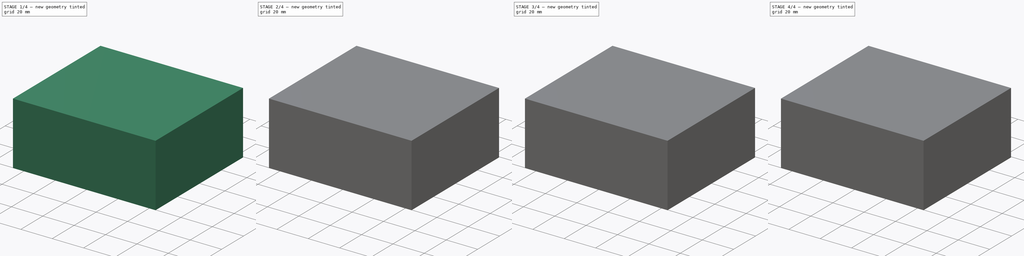
[diagram: build sequence overview — one tinted view per stage of 4, left to right]
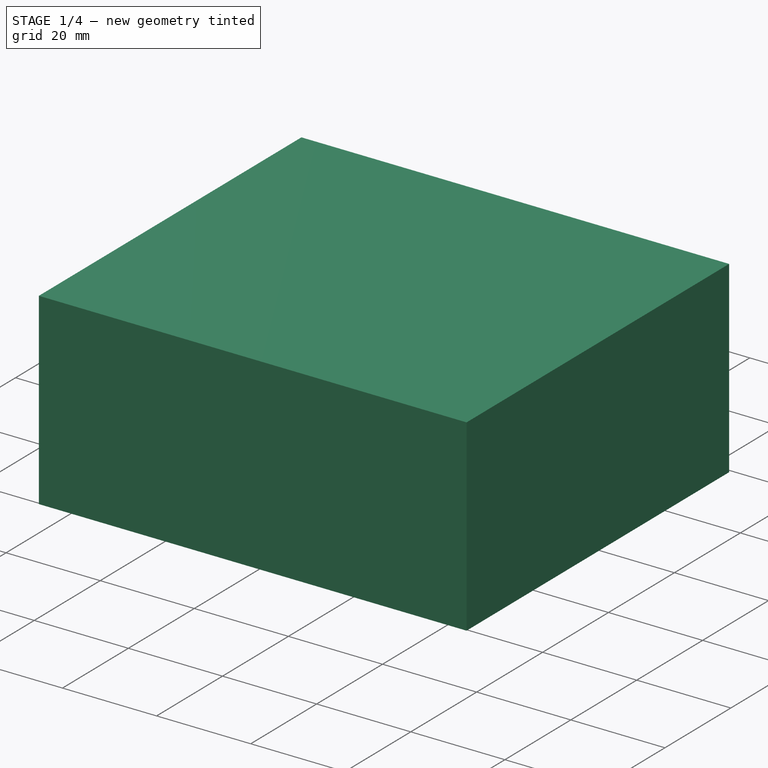
[diagram: stage 1 of 4 — iso view after this stage's code; geometry added in this stage tinted green]
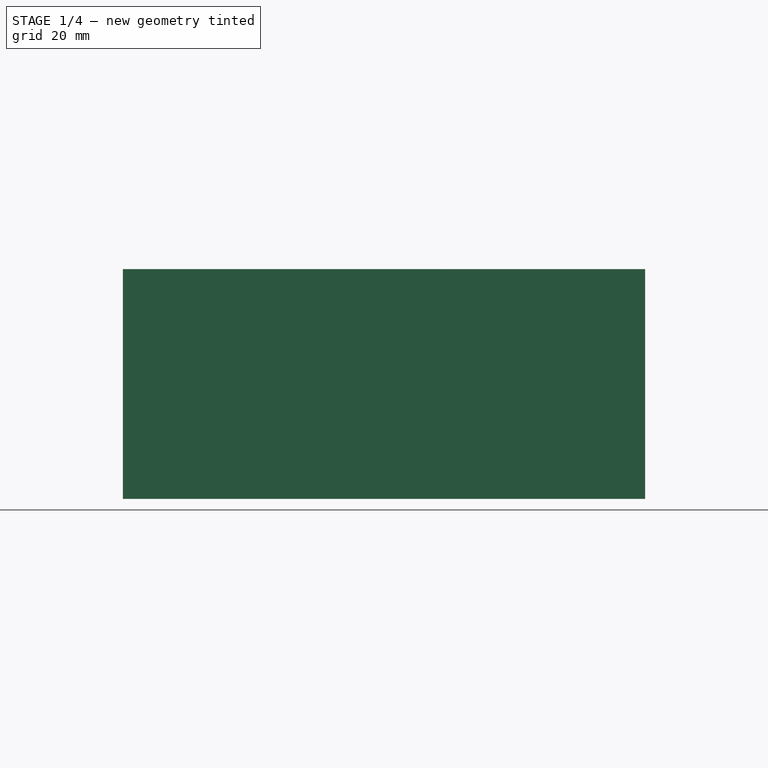
[diagram: stage 1 of 4 — front view after this stage's code; geometry added in this stage tinted green]
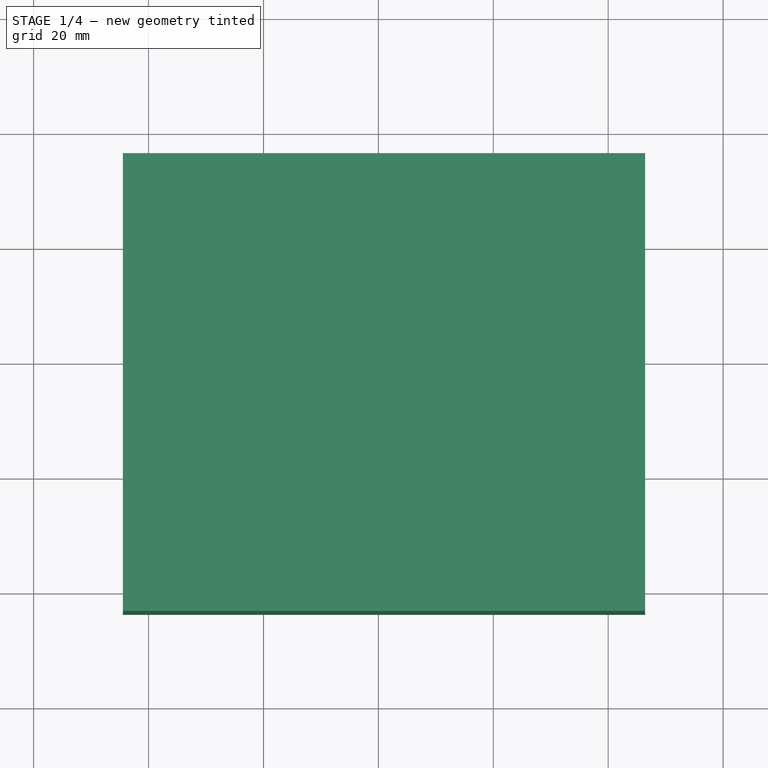
[diagram: stage 1 of 4 — top view after this stage's code; geometry added in this stage tinted green]
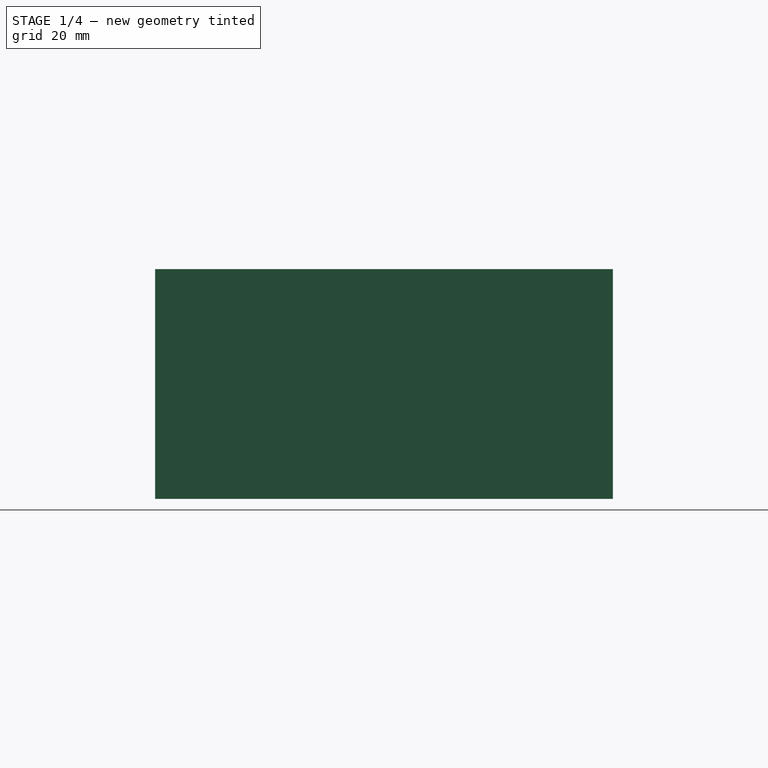
[diagram: stage 1 of 4 — right view after this stage's code; geometry added in this stage tinted green]
FCSTD DOCUMENT  (FreeCAD 0.18R16131 (Git))
Label: Wilkinson_Divider_1
License: All rights reserved
LicenseURL: http://en.wikipedia.org/wiki/All_rights_reserved
objects: Sketcher::SketchObject×11, Part::Extrusion×6, PartDesign::Body×3, PartDesign::Pad×2, PartDesign::FeatureBase×1
note: 25 computed .brp shape members not serialized (recipe doc carries the construction recipe); baked Part::Feature solids carry a one-line shape summary decoded from their .brp

FEATURE [PartDesign::Body] Body003  label="simBox Body"
  BaseFeature = -> Extrude003
  Group = -> [BaseFeature,Sketch009]
  Origin = -> Origin003
  Tip = -> BaseFeature
FEATURE [PartDesign::Body] Body  label="_export_copper_wilkinson"
  Group = -> [Sketch005,Pad]
  Origin = -> Origin
  Tip = -> Pad
FEATURE [Sketcher::SketchObject] Sketch011
  Placement = pos=(0,0,-20) rot=(0,0,1;0rad)
  sketch-geometry (4):
    g0: LineSegment StartX=-44.461 StartY=36.0134 StartZ=0 EndX=46.4173 EndY=36.0134 EndZ=0
    g1: LineSegment StartX=46.4173 StartY=36.0134 StartZ=0 EndX=46.4173 EndY=-43.6607 EndZ=0
    g2: LineSegment StartX=46.4173 StartY=-43.6607 StartZ=0 EndX=-44.461 EndY=-43.6607 EndZ=0
    g3: LineSegment StartX=-44.461 StartY=-43.6607 StartZ=0 EndX=-44.461 EndY=36.0134 EndZ=0
  constraints (8):
    c: Coincident(g0,g1)
    c: Coincident(g1,g2)
    c: Coincident(g2,g3)
    c: Coincident(g3,g0)
    c: Horizontal(g0)
    c: Horizontal(g2)
    c: Vertical(g1)
    c: Vertical(g3)
FEATURE [Part::Extrusion] Extrude005  label="_export_simBox"
  Base = -> Sketch011
  Dir = (0,0,1)
  DirMode = 2
  FaceMakerClass = Part::FaceMakerBullseye
  LengthFwd = 40
  LengthRev = 0
  Solid = true
  Symmetric = false
FEATURE [Sketcher::SketchObject] Sketch012  label="_export_openEMS_fieldDump"
  Placement = pos=(0,0,3) rot=(0,0,1;0rad)
  sketch-geometry (4):
    g0: LineSegment StartX=-21.6119 StartY=20.2717 StartZ=0 EndX=21.7226 EndY=20.2717 EndZ=0
    g1: LineSegment StartX=21.7226 StartY=20.2717 StartZ=0 EndX=21.7226 EndY=-19.1526 EndZ=0
    g2: LineSegment StartX=21.7226 StartY=-19.1526 StartZ=0 EndX=-21.6119 EndY=-19.1526 EndZ=0
    g3: LineSegment StartX=-21.6119 StartY=-19.1526 StartZ=0 EndX=-21.6119 EndY=20.2717 EndZ=0
  constraints (8):
    c: Coincident(g0,g1)
    c: Coincident(g1,g2)
    c: Coincident(g2,g3)
    c: Coincident(g3,g0)
    c: Horizontal(g0)
    c: Horizontal(g2)
    c: Vertical(g1)
    c: Vertical(g3)
FEATURE [Sketcher::SketchObject] Sketch003  label="gnd"
  MapMode = 5
  Placement = pos=(0,0,-1.5) rot=(0,0,1;0rad)
  sketch-geometry (4):
    g0: LineSegment StartX=22.5612 StartY=-20.1709 StartZ=0 EndX=-22.3707 EndY=-20.1709 EndZ=0
    g1: LineSegment StartX=-22.3707 StartY=-20.1709 StartZ=0 EndX=-22.3707 EndY=20.9197 EndZ=0
    g2: LineSegment StartX=-22.3707 StartY=20.9197 StartZ=0 EndX=22.5612 EndY=20.9197 EndZ=0
    g3: LineSegment StartX=22.5612 StartY=20.9197 StartZ=0 EndX=22.5612 EndY=-20.1709 EndZ=0
  constraints (8):
    c: Coincident(g0,g1)
    c: Coincident(g1,g2)
    c: Coincident(g2,g3)
    c: Coincident(g3,g0)
    c: Horizontal(g0)
    c: Horizontal(g2)
    c: Vertical(g1)
    c: Vertical(g3)
FEATURE [Part::Extrusion] Extrude006  label="_export_openEMS_gndPad"
  Base = -> Sketch003
  Dir = (0,0,1)
  DirMode = 2
  FaceMakerClass = Part::FaceMakerBullseye
  LengthFwd = 0
  LengthRev = 0.035
  Solid = true
  Symmetric = false
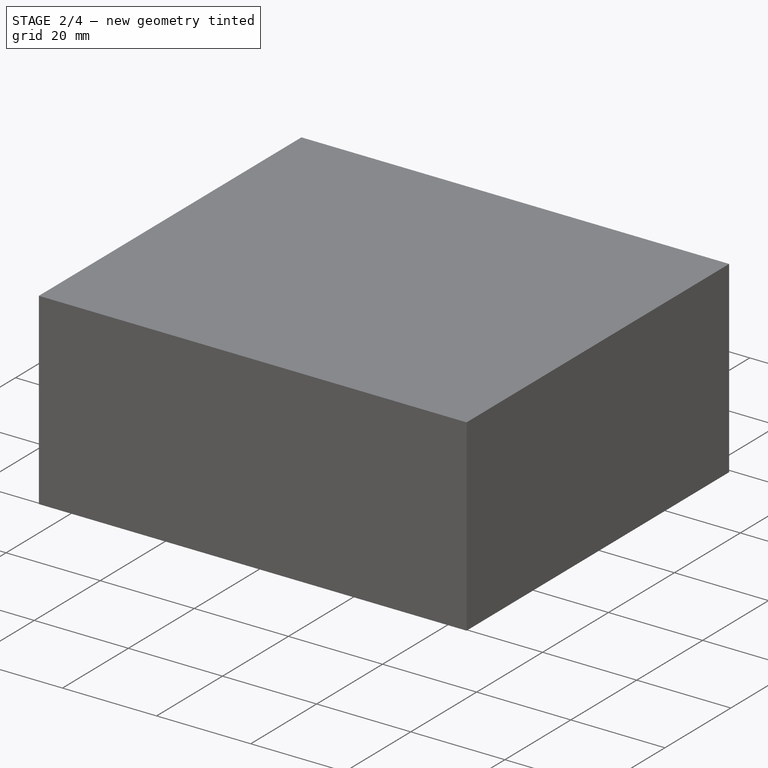
[diagram: stage 2 of 4 — iso view after this stage's code; geometry added in this stage tinted green]
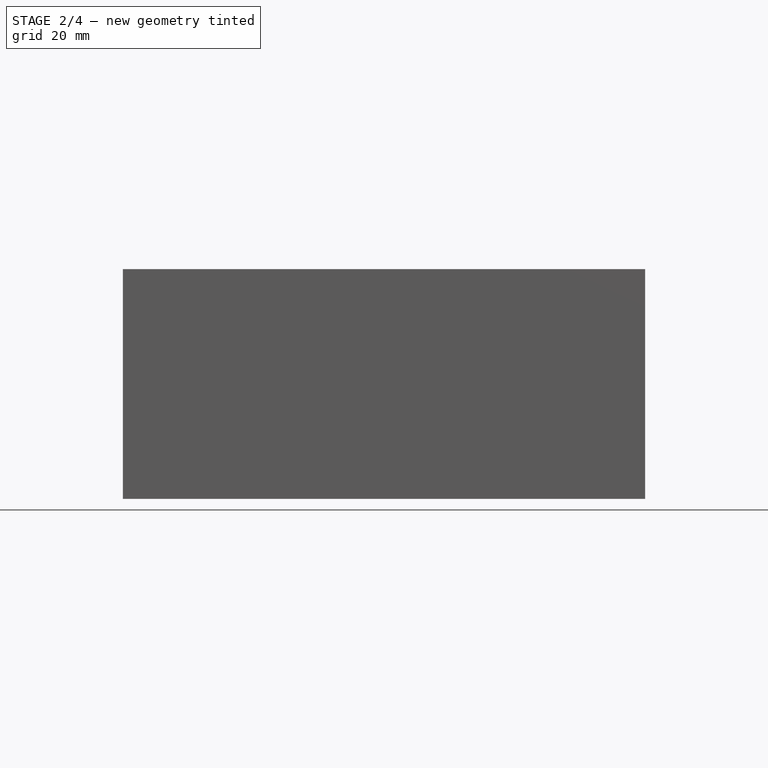
[diagram: stage 2 of 4 — front view after this stage's code; geometry added in this stage tinted green]
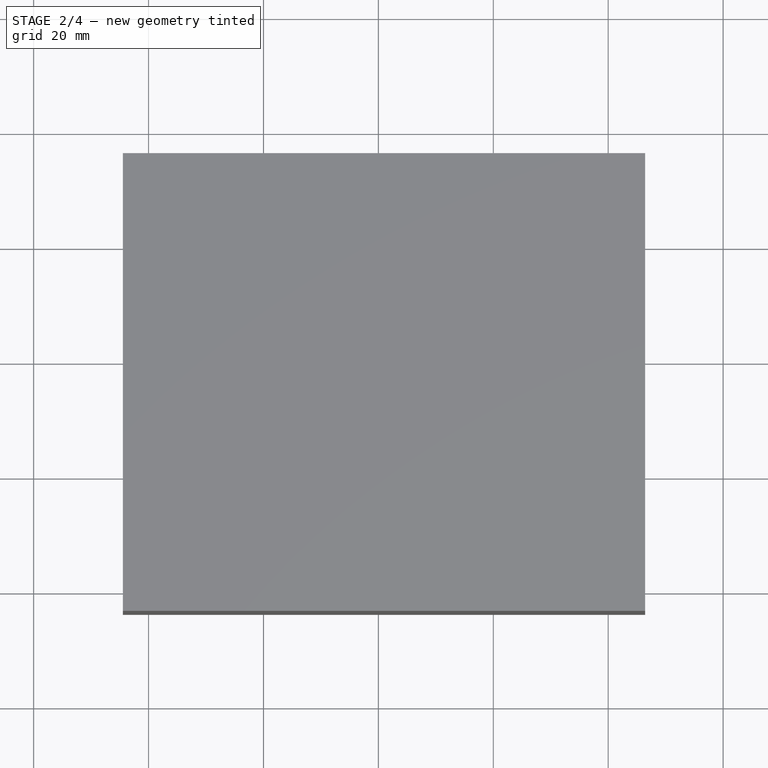
[diagram: stage 2 of 4 — top view after this stage's code; geometry added in this stage tinted green]
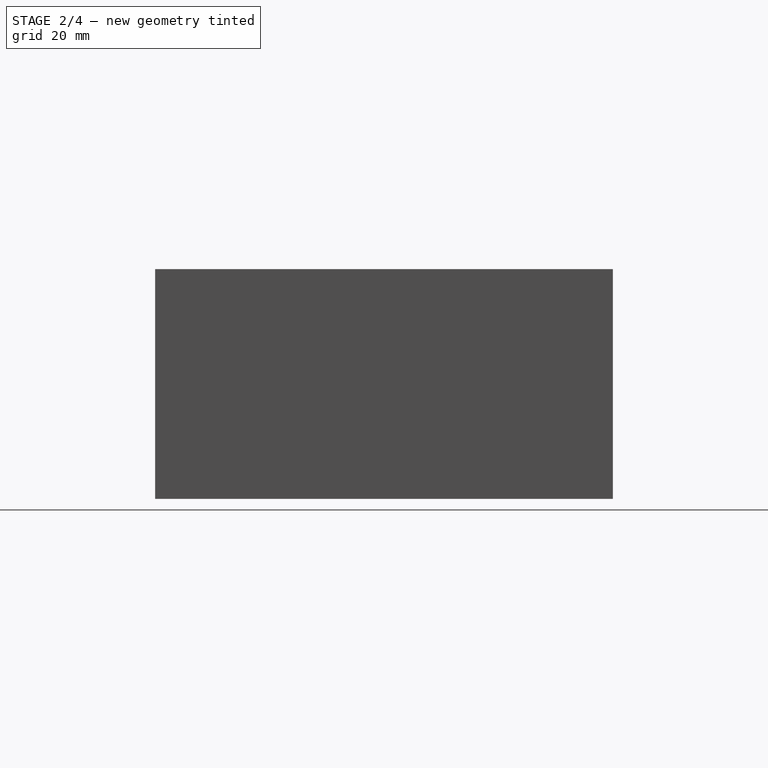
[diagram: stage 2 of 4 — right view after this stage's code; geometry added in this stage tinted green]
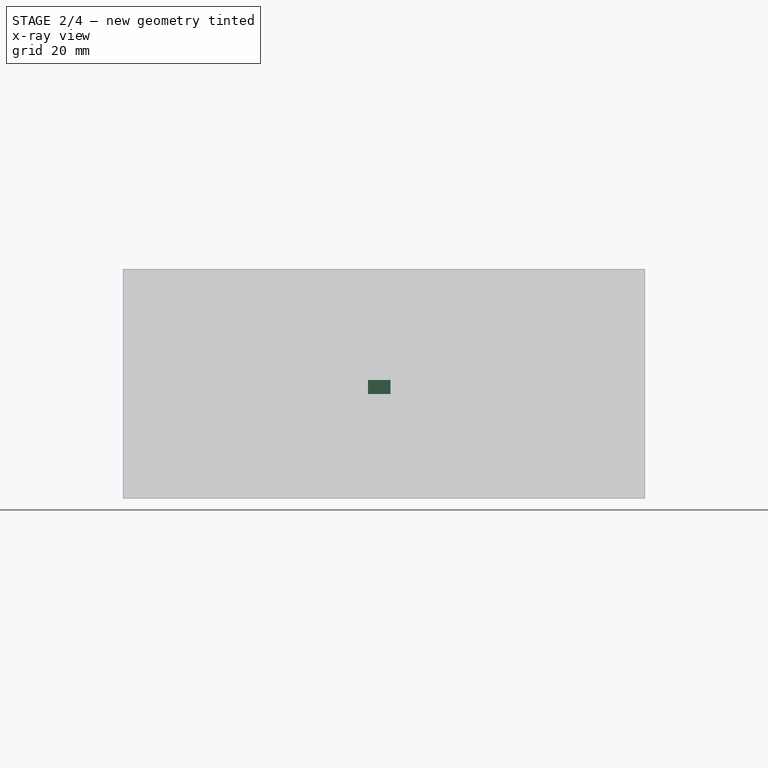
[diagram: stage 2 of 4 — x-ray composite at the front view; earlier geometry ghosted, this stage's added geometry solid]
FEATURE [PartDesign::Body] Body002  label="_export_substrate_cuprextit"
  Group = -> [Sketch001,Pad002]
  Origin = -> Origin002
  Tip = -> Pad002
FEATURE [Sketcher::SketchObject] Sketch009
  AttachmentOffset = pos=(0,0,-20) rot=(0,0,1;0rad)
  MapMode = 5
  Placement = pos=(0,0,-20) rot=(0,0,1;0rad)
  Support = -> [XY_Plane003]
  sketch-geometry (8):
    g0: LineSegment StartX=-69.4422 StartY=58.5006 StartZ=0 EndX=-23.8556 EndY=58.5006 EndZ=0
    g1: LineSegment StartX=-23.8556 StartY=58.5006 StartZ=0 EndX=-23.8556 EndY=-68.9477 EndZ=0
    g2: LineSegment StartX=-23.8556 StartY=-68.9477 StartZ=0 EndX=-69.4422 EndY=-68.9477 EndZ=0
    g3: LineSegment StartX=-69.4422 StartY=-68.9477 StartZ=0 EndX=-69.4422 EndY=58.5006 EndZ=0
    g4: LineSegment StartX=23.6532 StartY=59.1331 StartZ=0 EndX=67.0472 EndY=59.1331 EndZ=0
    g5: LineSegment StartX=67.0472 StartY=59.1331 StartZ=0 EndX=67.0472 EndY=-68.7367 EndZ=0
    g6: LineSegment StartX=67.0472 StartY=-68.7367 StartZ=0 EndX=23.6532 EndY=-68.7367 EndZ=0
    g7: LineSegment StartX=23.6532 StartY=-68.7367 StartZ=0 EndX=23.6532 EndY=59.1331 EndZ=0
  constraints (16):
    c: Coincident(g0,g1)
    c: Coincident(g1,g2)
    c: Coincident(g2,g3)
    c: Coincident(g3,g0)
    c: Horizontal(g0)
    c: Horizontal(g2)
    c: Vertical(g1)
    c: Vertical(g3)
    c: Coincident(g4,g5)
    c: Coincident(g5,g6)
    c: Coincident(g6,g7)
    c: Coincident(g7,g4)
    c: Horizontal(g4)
    c: Horizontal(g6)
    c: Vertical(g5)
    c: Vertical(g7)
FEATURE [Sketcher::SketchObject] Sketch005  label="wilkinson001"
  MapMode = 5
  Support = -> [XY_Plane]
  sketch-geometry (30):
    g0: GeomPoint X=0 Y=19.6584 Z=0
    g1: GeomPoint X=0 Y=-15.7308 Z=0
    g2: LineSegment StartX=0.837893 StartY=-17.956 StartZ=0 EndX=20.8379 EndY=-17.956 EndZ=0
    g3: LineSegment StartX=-0.837893 StartY=-17.956 StartZ=0 EndX=-20.8379 EndY=-17.956 EndZ=0
    g4: LineSegment StartX=0.837893 StartY=-7.956 StartZ=0 EndX=0.837893 EndY=-17.956 EndZ=0
    g5: LineSegment StartX=-0.837893 StartY=-7.956 StartZ=0 EndX=-0.837893 EndY=-17.956 EndZ=0
    g6: LineSegment StartX=4.15789 StartY=-14.636 StartZ=0 EndX=4.15789 EndY=-8.87423 EndZ=0
    g7: LineSegment StartX=-4.15789 StartY=-14.636 StartZ=0 EndX=-4.15789 EndY=-8.87423 EndZ=0
    g8: GeomPoint X=4.15789 Y=-7.87286 Z=0
    g9: GeomPoint X=4.15789 Y=-14.636 Z=0
    g10: GeomPoint X=-4.15789 Y=-14.636 Z=0
    g11: LineSegment StartX=4.15789 StartY=-14.636 StartZ=0 EndX=20.8379 EndY=-14.636 EndZ=0
    g12: LineSegment StartX=20.8379 StartY=-14.636 StartZ=0 EndX=20.8379 EndY=-17.956 EndZ=0
    g13: LineSegment StartX=-4.15789 StartY=-14.636 StartZ=0 EndX=-20.8379 EndY=-14.636 EndZ=0
    g14: LineSegment StartX=-20.8379 StartY=-14.636 StartZ=0 EndX=-20.8379 EndY=-17.956 EndZ=0
    g15: GeomPoint X=-1.66 Y=9.65838 Z=0
    g16: GeomPoint X=-0.837893 Y=-7.95683 Z=0
    g17: GeomPoint X=0.837893 Y=-8.87423 Z=0
    g18: GeomPoint X=4.15789 Y=-8.87423 Z=0
    g19: GeomPoint X=-4.15789 Y=-8.87423 Z=0
    g20: ArcOfCircle CenterX=0 CenterY=0 CenterZ=0 NormalX=0 NormalY=0 NormalZ=1 AngleXU=0 Radius=8 StartAngle=4.81732 EndAngle=7.645
    g21: ArcOfCircle CenterX=0 CenterY=0 CenterZ=0 NormalX=0 NormalY=0 NormalZ=1 AngleXU=0 Radius=9.8 StartAngle=5.15055 EndAngle=7.68377
    g22: ArcOfCircle CenterX=0 CenterY=0 CenterZ=0 NormalX=0 NormalY=0 NormalZ=1 AngleXU=0 Radius=8 StartAngle=1.77987 EndAngle=4.60746
    g23: ArcOfCircle CenterX=0 CenterY=0 CenterZ=0 NormalX=0 NormalY=0 NormalZ=1 AngleXU=0 Radius=9.8 StartAngle=1.741 EndAngle=4.27423
    g24: GeomPoint X=-3.3942 Y=-7.24427 Z=0
    g25: GeomPoint X=3.3942 Y=-7.24427 Z=0
    g26: LineSegment StartX=-1.66 StartY=19.6584 StartZ=0 EndX=1.66 EndY=19.6584 EndZ=0
    g27: LineSegment StartX=-1.66 StartY=19.6584 StartZ=0 EndX=-1.66 EndY=9.65838 EndZ=0
    g28: LineSegment StartX=1.66 StartY=19.6584 StartZ=0 EndX=1.66 EndY=9.65838 EndZ=0
    g29: LineSegment StartX=-1.66046 StartY=7.82578 StartZ=0 EndX=1.65969 EndY=7.82595 EndZ=0
  constraints (66):
    c: PointOnObject(g0,g-2)
    c: PointOnObject(g1,g-2)
    c: Horizontal(g2)
    c: Horizontal(g3)
    c: Perpendicular(g3,g5)
    c: Perpendicular(g2,g4)
    c: Parallel(g6,g4)
    c: Parallel(g7,g5)
    c: PointOnObject(g8,g6)
    c: PointOnObject(g9,g6)
    c: PointOnObject(g10,g7)
    c: Coincident(g11,g9)
    c: Coincident(g11,g12)
    c: Coincident(g12,g2)
    c: Perpendicular(g6,g11)
    c: Perpendicular(g2,g12)
    c: Coincident(g13,g10)
    c: Coincident(g13,g14)
    c: Coincident(g14,g3)
    c: Perpendicular(g14,g3)
    c: Perpendicular(g14,g13)
    c: PointOnObject(g19,g7)
    c: PointOnObject(g18,g6)
    c: PointOnObject(g16,g5)
    c: PointOnObject(g17,g4)
    c: PointOnObject(g6,g11)
    c: PointOnObject(g7,g13)
    c: Coincident(g2,g4)
    c: Coincident(g3,g5)
    c: Coincident(g20,g-1)
    c: Coincident(g20,g4)
    c: Coincident(g21,g20)
    c: Coincident(g21,g18)
    c: Coincident(g22,g20)
    c: Coincident(g22,g5)
    c: Coincident(g23,g20)
    c: Coincident(g23,g15)
    c: Coincident(g23,g19)
    c: PointOnObject(g7,g23)
    c: PointOnObject(g6,g21)
    c: Distance(g12) = 3.32
    c: Distance(g14) = 3.32
    c: PointOnObject(g24,g22)
    c: Distance(g24,g7) = 1.8
    c: PointOnObject(g25,g20)
    c: Distance(g25,g6) = 1.8
    c: PointOnObject(g0,g26)
    c: Symmetric(g26,g26,g-2)
    c: Distance(g26) = 3.32
    c: Radius(g20) = 8
    c: Coincident(g27,g26)
    c: Coincident(g28,g26)
    c: Parallel(g28,g-2)
    c: Parallel(g27,g-2)
    c: PointOnObject(g15,g27)
    c: Coincident(g29,g22)
    c: Coincident(g29,g20)
    c: PointOnObject(g27,g23)
    c: Coincident(g28,g21)
    c: Distance(g5) = 10
    c: Distance(g4) = 10
    c: Symmetric(g4,g5,g-2)
    c: DistanceY(g11,g20) = 14.636
    c: Distance(g2) = 20
    c: Distance(g3) = 20
    c: Distance(g27) = 10
FEATURE [PartDesign::Pad] Pad  label="openEMS_Wilkinson"
  Length = 0.035
  Length2 = 100
  Profile = -> Sketch005
  Type = 0
FEATURE [Sketcher::SketchObject] Sketch008  label="inPort sketch"
  MapMode = 5
  Placement = pos=(0,19.6584,0) rot=(0,0.707107,0.707107;3.14159rad)
  Support = -> [Pad]
  sketch-geometry (4):
    g0: LineSegment StartX=-2.11714 StartY=0.694302 StartZ=0 EndX=1.82683 EndY=0.694302 EndZ=0
    g1: LineSegment StartX=1.82683 StartY=0.694302 StartZ=0 EndX=1.82683 EndY=-1.79311 EndZ=0
    g2: LineSegment StartX=1.82683 StartY=-1.79311 StartZ=0 EndX=-2.11714 EndY=-1.79311 EndZ=0
    g3: LineSegment StartX=-2.11714 StartY=-1.79311 StartZ=0 EndX=-2.11714 EndY=0.694302 EndZ=0
  constraints (8):
    c: Coincident(g0,g1)
    c: Coincident(g1,g2)
    c: Coincident(g2,g3)
    c: Coincident(g3,g0)
    c: Horizontal(g0)
    c: Horizontal(g2)
    c: Vertical(g1)
    c: Vertical(g3)
FEATURE [Part::Extrusion] Extrude003  label="openEMS_inPort"
  Base = -> Sketch008
  Dir = (0,1,-2e-16)
  DirMode = 2
  FaceMakerClass = Part::FaceMakerBullseye
  LengthFwd = 0.5
  LengthRev = 0
  Reversed = true
  Solid = true
  Symmetric = false
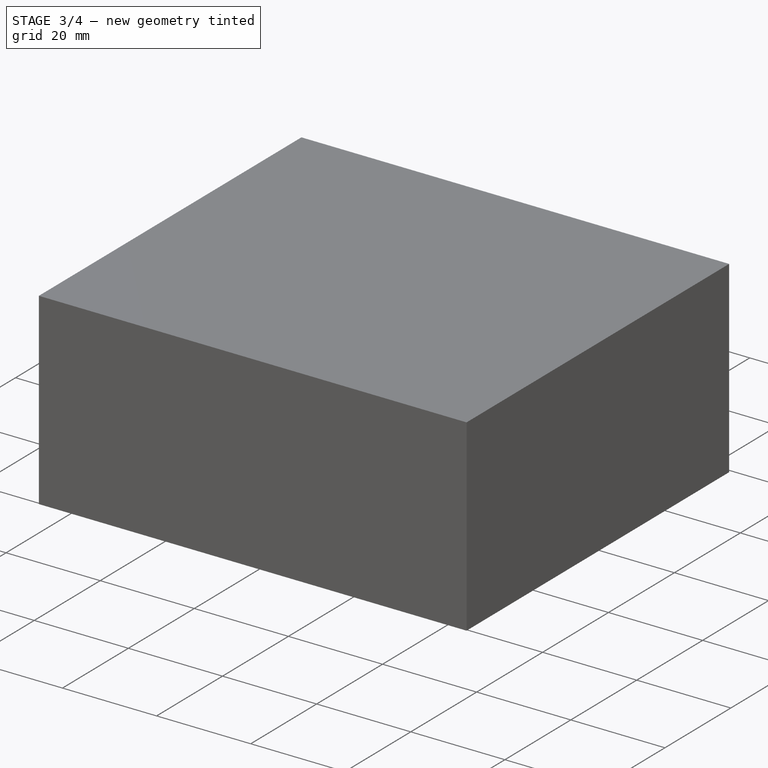
[diagram: stage 3 of 4 — iso view after this stage's code; geometry added in this stage tinted green]
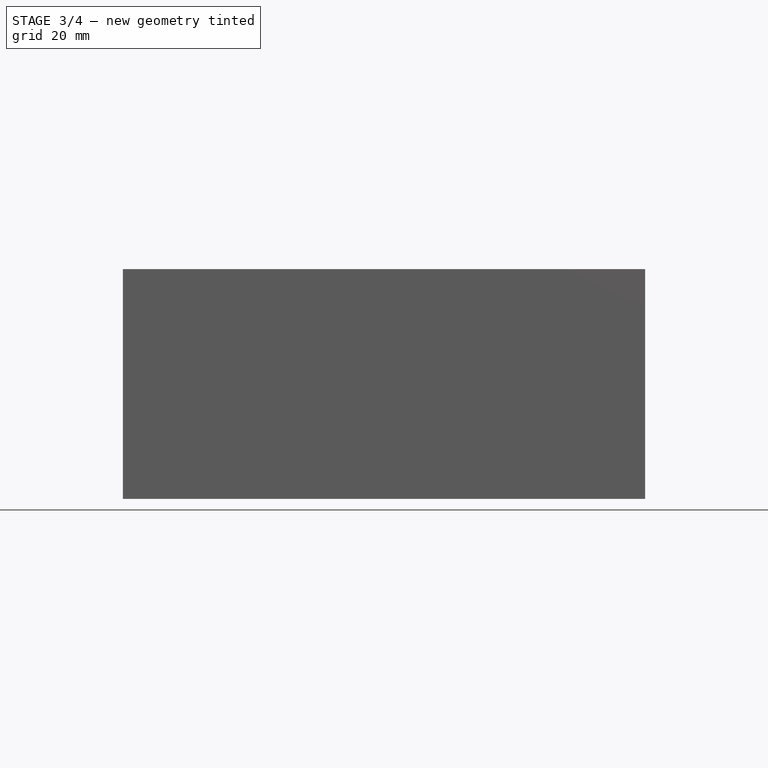
[diagram: stage 3 of 4 — front view after this stage's code; geometry added in this stage tinted green]
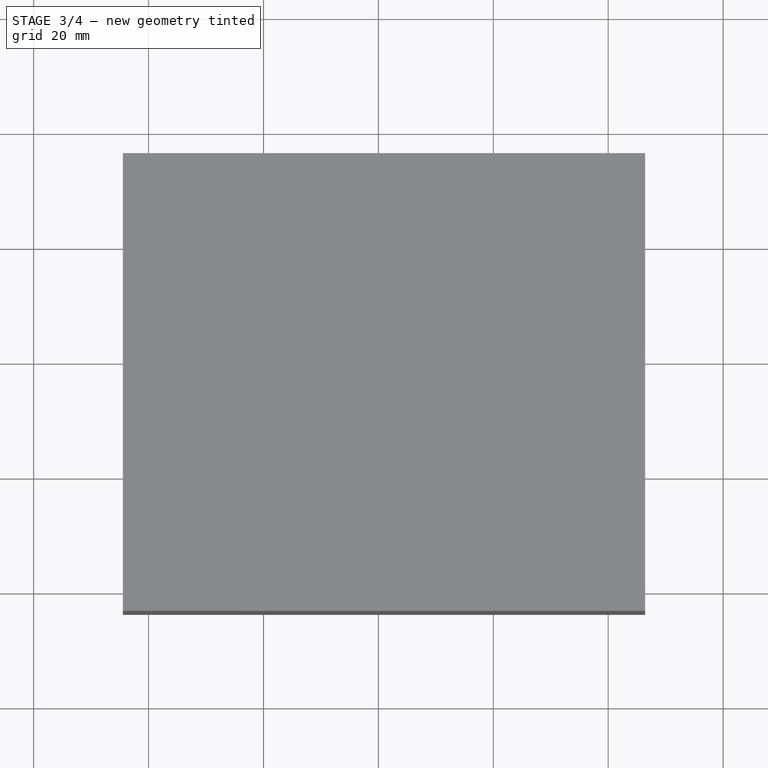
[diagram: stage 3 of 4 — top view after this stage's code; geometry added in this stage tinted green]
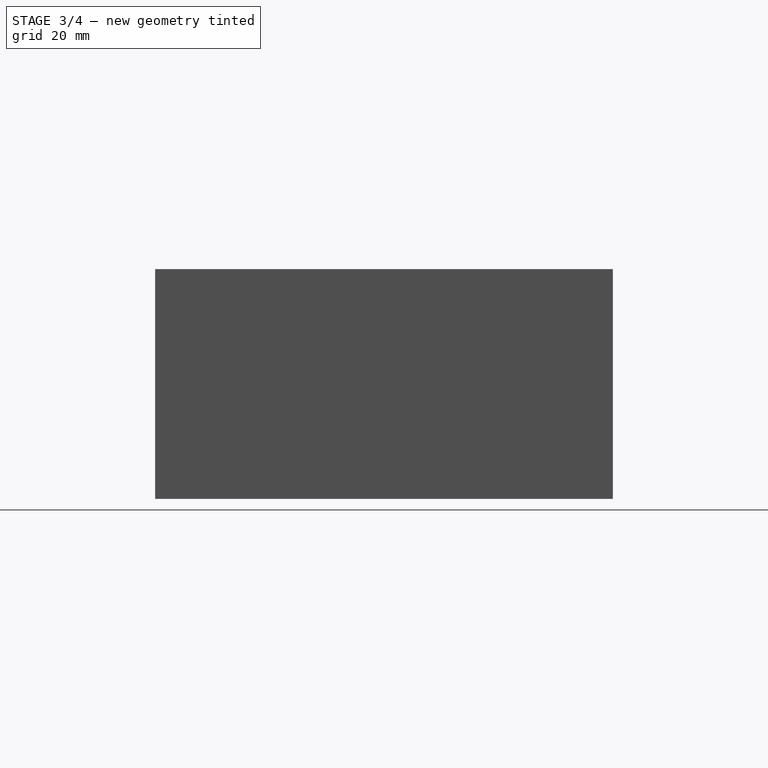
[diagram: stage 3 of 4 — right view after this stage's code; geometry added in this stage tinted green]
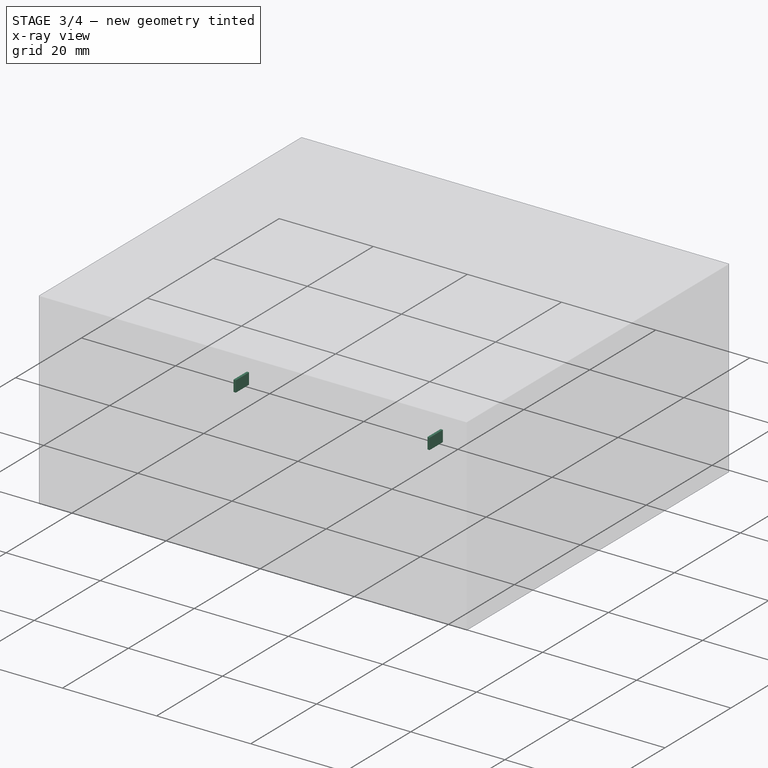
[diagram: stage 3 of 4 — x-ray composite at the iso view; earlier geometry ghosted, this stage's added geometry solid]
FEATURE [Sketcher::SketchObject] Sketch006  label="port2 sketch"
  MapMode = 5
  Placement = pos=(20.8379,0,0) rot=(0.57735,0.57735,0.57735;2.0944rad)
  Support = -> [Pad]
  sketch-geometry (4):
    g0: LineSegment StartX=-18.362 StartY=0.537745 StartZ=0 EndX=-14.3064 EndY=0.537745 EndZ=0
    g1: LineSegment StartX=-14.3064 StartY=0.537745 StartZ=0 EndX=-14.3064 EndY=-1.86314 EndZ=0
    g2: LineSegment StartX=-14.3064 StartY=-1.86314 StartZ=0 EndX=-18.362 EndY=-1.86314 EndZ=0
    g3: LineSegment StartX=-18.362 StartY=-1.86314 StartZ=0 EndX=-18.362 EndY=0.537745 EndZ=0
  constraints (8):
    c: Coincident(g0,g1)
    c: Coincident(g1,g2)
    c: Coincident(g2,g3)
    c: Coincident(g3,g0)
    c: Horizontal(g0)
    c: Horizontal(g2)
    c: Vertical(g1)
    c: Vertical(g3)
FEATURE [Part::Extrusion] Extrude001  label="openEMS_port2"
  Base = -> Sketch006
  Dir = (1,0,0)
  DirMode = 2
  FaceMakerClass = Part::FaceMakerBullseye
  LengthFwd = 0.5
  LengthRev = 0
  Reversed = true
  Solid = true
  Symmetric = false
FEATURE [Sketcher::SketchObject] Sketch007  label="port1 sketch"
  MapMode = 5
  Placement = pos=(-20.8379,0,0) rot=(0.57735,-0.57735,-0.57735;2.0944rad)
  Support = -> [Pad]
  sketch-geometry (4):
    g0: LineSegment StartX=14.2929 StartY=0.553675 StartZ=0 EndX=18.3598 EndY=0.553675 EndZ=0
    g1: LineSegment StartX=18.3598 StartY=0.553675 StartZ=0 EndX=18.3598 EndY=-1.84587 EndZ=0
    g2: LineSegment StartX=18.3598 StartY=-1.84587 StartZ=0 EndX=14.2929 EndY=-1.84587 EndZ=0
    g3: LineSegment StartX=14.2929 StartY=-1.84587 StartZ=0 EndX=14.2929 EndY=0.553675 EndZ=0
  constraints (8):
    c: Coincident(g0,g1)
    c: Coincident(g1,g2)
    c: Coincident(g2,g3)
    c: Coincident(g3,g0)
    c: Horizontal(g0)
    c: Horizontal(g2)
    c: Vertical(g1)
    c: Vertical(g3)
FEATURE [Part::Extrusion] Extrude002  label="openEMS_port1"
  Base = -> Sketch007
  Dir = (-1,0,0)
  DirMode = 2
  FaceMakerClass = Part::FaceMakerBullseye
  LengthFwd = 0.5
  LengthRev = 0
  Reversed = true
  Solid = true
  Symmetric = false
FEATURE [PartDesign::FeatureBase] BaseFeature
  BaseFeature = -> Extrude003
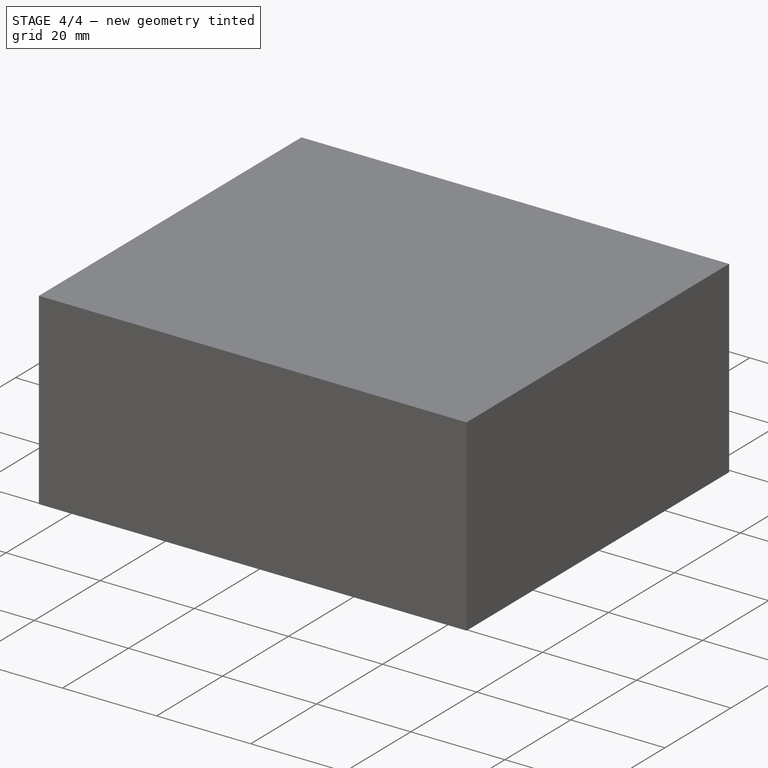
[diagram: stage 4 of 4 — iso view after this stage's code; geometry added in this stage tinted green]
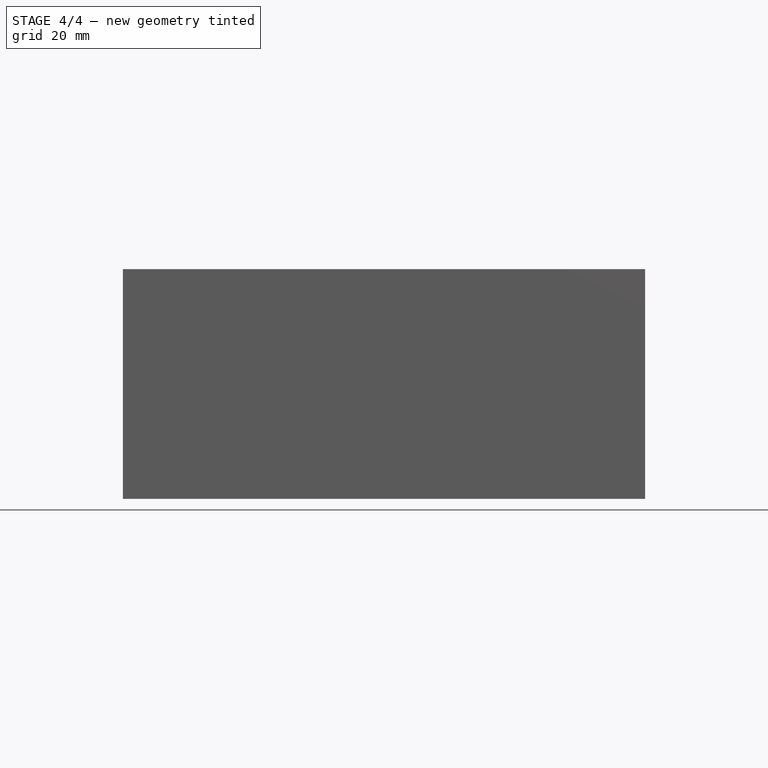
[diagram: stage 4 of 4 — front view after this stage's code; geometry added in this stage tinted green]
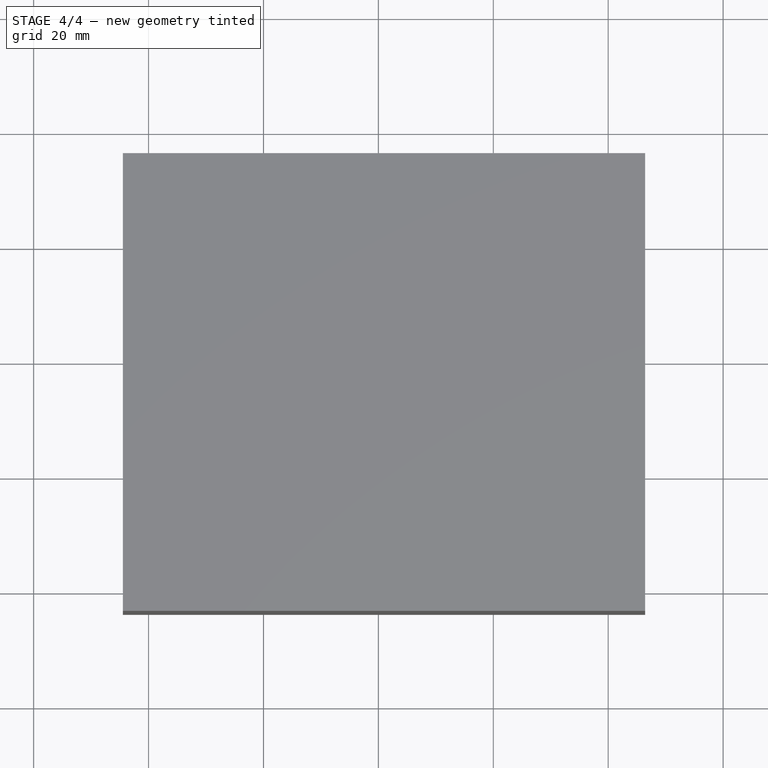
[diagram: stage 4 of 4 — top view after this stage's code; geometry added in this stage tinted green]
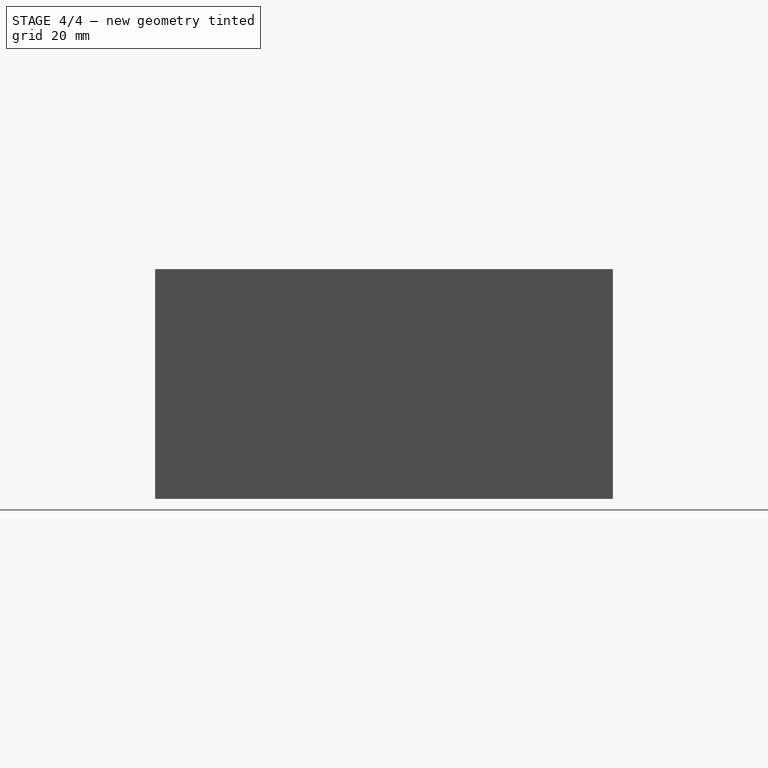
[diagram: stage 4 of 4 — right view after this stage's code; geometry added in this stage tinted green]
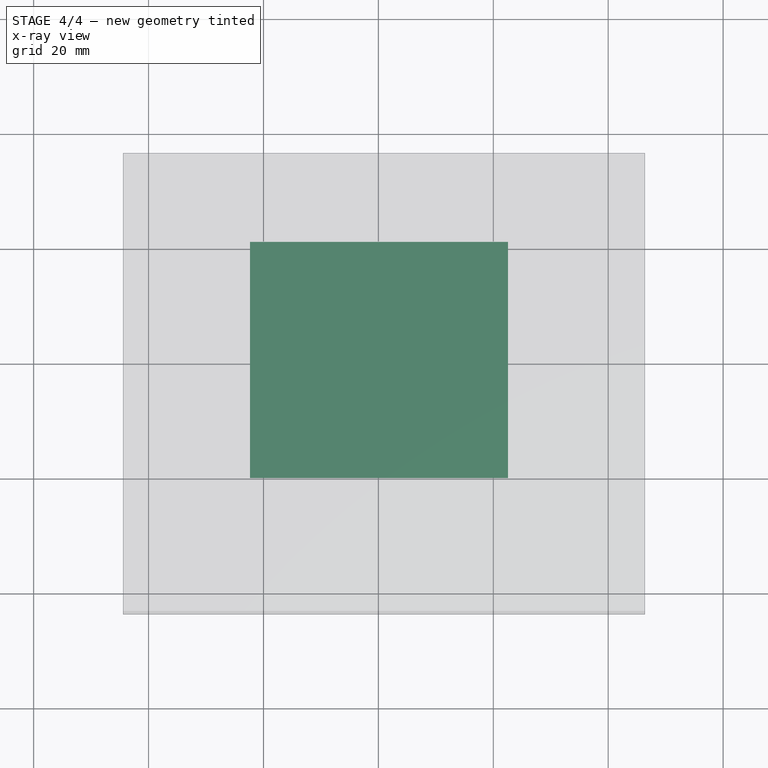
[diagram: stage 4 of 4 — x-ray composite at the top view; earlier geometry ghosted, this stage's added geometry solid]
FEATURE [Sketcher::SketchObject] Sketch001  label="substrate"
  MapMode = 5
  Support = -> [XY_Plane002]
  sketch-geometry (4):
    g0: LineSegment StartX=22.5612 StartY=-20.1709 StartZ=0 EndX=-22.3707 EndY=-20.1709 EndZ=0
    g1: LineSegment StartX=-22.3707 StartY=-20.1709 StartZ=0 EndX=-22.3707 EndY=20.9197 EndZ=0
    g2: LineSegment StartX=-22.3707 StartY=20.9197 StartZ=0 EndX=22.5612 EndY=20.9197 EndZ=0
    g3: LineSegment StartX=22.5612 StartY=20.9197 StartZ=0 EndX=22.5612 EndY=-20.1709 EndZ=0
  constraints (8):
    c: Coincident(g0,g1)
    c: Coincident(g1,g2)
    c: Coincident(g2,g3)
    c: Coincident(g3,g0)
    c: Horizontal(g0)
    c: Horizontal(g2)
    c: Vertical(g1)
    c: Vertical(g3)
FEATURE [Sketcher::SketchObject] Sketch004  label="wilkinson"
  MapMode = 5
  sketch-geometry (35):
    g0: GeomPoint X=0 Y=19.6584 Z=0
    g1: GeomPoint X=0 Y=-15.7308 Z=0
    g2: LineSegment StartX=0.837893 StartY=-17.956 StartZ=0 EndX=20.8379 EndY=-17.956 EndZ=0
    g3: LineSegment StartX=-0.837893 StartY=-17.956 StartZ=0 EndX=-20.8379 EndY=-17.956 EndZ=0
    g4: LineSegment StartX=0.837893 StartY=-7.956 StartZ=0 EndX=0.837893 EndY=-17.956 EndZ=0
    g5: LineSegment StartX=-0.837893 StartY=-7.956 StartZ=0 EndX=-0.837893 EndY=-17.956 EndZ=0
    g6: LineSegment StartX=4.15789 StartY=-14.636 StartZ=0 EndX=4.15789 EndY=-8.87423 EndZ=0
    g7: LineSegment StartX=-4.15789 StartY=-14.636 StartZ=0 EndX=-4.15789 EndY=-8.87423 EndZ=0
    g8: GeomPoint X=4.15789 Y=-7.87286 Z=0
    g9: GeomPoint X=4.15789 Y=-14.636 Z=0
    g10: GeomPoint X=-4.15789 Y=-14.636 Z=0
    g11: LineSegment StartX=4.15789 StartY=-14.636 StartZ=0 EndX=20.8379 EndY=-14.636 EndZ=0
    g12: LineSegment StartX=20.8379 StartY=-14.636 StartZ=0 EndX=20.8379 EndY=-17.956 EndZ=0
    g13: LineSegment StartX=-4.15789 StartY=-14.636 StartZ=0 EndX=-20.8379 EndY=-14.636 EndZ=0
    g14: LineSegment StartX=-20.8379 StartY=-14.636 StartZ=0 EndX=-20.8379 EndY=-17.956 EndZ=0
    g15: GeomPoint X=-1.66 Y=9.65838 Z=0
    g16: GeomPoint X=-0.837893 Y=-7.95683 Z=0
    g17: GeomPoint X=0.837893 Y=-8.87423 Z=0
    g18: GeomPoint X=4.15789 Y=-8.87423 Z=0
    g19: GeomPoint X=-4.15789 Y=-8.87423 Z=0
    g20: ArcOfCircle CenterX=0 CenterY=0 CenterZ=0 NormalX=0 NormalY=0 NormalZ=1 AngleXU=0 Radius=8 StartAngle=4.81732 EndAngle=7.645
    g21: ArcOfCircle CenterX=0 CenterY=0 CenterZ=0 NormalX=0 NormalY=0 NormalZ=1 AngleXU=0 Radius=9.8 StartAngle=5.15055 EndAngle=7.68377
    g22: ArcOfCircle CenterX=0 CenterY=0 CenterZ=0 NormalX=0 NormalY=0 NormalZ=1 AngleXU=0 Radius=8 StartAngle=1.77987 EndAngle=4.60746
    g23: ArcOfCircle CenterX=0 CenterY=0 CenterZ=0 NormalX=0 NormalY=0 NormalZ=1 AngleXU=0 Radius=9.8 StartAngle=1.741 EndAngle=4.27423
    g24: LineSegment StartX=-3.3942 StartY=-7.24427 StartZ=0 EndX=-4.15789 EndY=-8.87423 EndZ=0
    g25: GeomPoint X=-3.3942 Y=-7.24427 Z=0
    g26: LineSegment StartX=3.3942 StartY=-7.24427 StartZ=0 EndX=4.15789 EndY=-8.87423 EndZ=0
    g27: GeomPoint X=3.3942 Y=-7.24427 Z=0
    g28: LineSegment StartX=-1.66 StartY=19.6584 StartZ=0 EndX=1.66 EndY=19.6584 EndZ=0
    g29: LineSegment StartX=-4.15789 StartY=-8.87423 StartZ=0 EndX=-0.837893 EndY=-8.87423 EndZ=0
    g30: LineSegment StartX=0.837893 StartY=-8.87423 StartZ=0 EndX=4.15789 EndY=-8.87423 EndZ=0
    g31: LineSegment StartX=-1.66 StartY=19.6584 StartZ=0 EndX=-1.66 EndY=9.65838 EndZ=0
    g32: LineSegment StartX=1.66 StartY=19.6584 StartZ=0 EndX=1.66 EndY=9.65838 EndZ=0
    g33: LineSegment StartX=-1.66046 StartY=7.82578 StartZ=0 EndX=1.65969 EndY=7.82595 EndZ=0
    g34: LineSegment StartX=-0.837893 StartY=-7.956 StartZ=0 EndX=0.837893 EndY=-7.956 EndZ=0
  constraints (84):
    c: PointOnObject(g0,g-2)
    c: PointOnObject(g1,g-2)
    c: Horizontal(g2)
    c: Horizontal(g3)
    c: Perpendicular(g3,g5)
    c: Perpendicular(g2,g4)
    c: Parallel(g6,g4)
    c: Parallel(g7,g5)
    c: PointOnObject(g8,g6)
    c: PointOnObject(g9,g6)
    c: PointOnObject(g10,g7)
    c: Coincident(g11,g9)
    c: Coincident(g11,g12)
    c: Coincident(g12,g2)
    c: Perpendicular(g6,g11)
    c: Perpendicular(g2,g12)
    c: Coincident(g13,g10)
    c: Coincident(g13,g14)
    c: Coincident(g14,g3)
    c: Perpendicular(g14,g3)
    c: Perpendicular(g14,g13)
    c: PointOnObject(g19,g7)
    c: PointOnObject(g18,g6)
    c: PointOnObject(g16,g5)
    c: PointOnObject(g17,g4)
    c: PointOnObject(g6,g11)
    c: PointOnObject(g7,g13)
    c: Coincident(g2,g4)
    c: Coincident(g3,g5)
    c: Coincident(g20,g-1)
    c: Coincident(g20,g4)
    c: Coincident(g21,g20)
    c: Coincident(g21,g18)
    c: Coincident(g22,g20)
    c: Coincident(g22,g5)
    c: Coincident(g23,g20)
    c: Coincident(g23,g15)
    c: Coincident(g23,g19)
    c: PointOnObject(g7,g23)
    c: PointOnObject(g6,g21)
    c: Distance(g12) = 3.32
    c: Distance(g14) = 3.32
    c: Coincident(g24,g7)
    c: PointOnObject(g25,g22)
    c: PointOnObject(g25,g24)
    c: Distance(g25,g7) = 1.8
    c: Coincident(g26,g6)
    c: PointOnObject(g27,g20)
    c: PointOnObject(g27,g26)
    c: Distance(g27,g6) = 1.8
    c: PointOnObject(g24,g22)
    c: PointOnObject(g26,g20)
    c: PointOnObject(g0,g28)
    c: Symmetric(g28,g28,g-2)
    c: Distance(g28) = 3.32
    c: Coincident(g29,g7)
    c: PointOnObject(g29,g5)
    c: Horizontal(g29)
    c: Distance(g29) = 3.32
    c: Perpendicular(g22,g24)
    c: Perpendicular(g20,g26)
    c: Coincident(g30,g17)
    c: Coincident(g30,g6)
    c: Perpendicular(g30,g4,g17) = 4.71239
    c: Radius(g20) = 8
    c: Coincident(g31,g28)
    c: Coincident(g32,g28)
    c: Parallel(g32,g-2)
    c: Parallel(g31,g-2)
    c: PointOnObject(g15,g31)
    c: Coincident(g33,g22)
    c: Coincident(g33,g20)
    c: PointOnObject(g31,g23)
    c: Coincident(g32,g21)
    c: Coincident(g34,g5)
    c: Coincident(g34,g4)
    c: Distance(g5) = 10
    c: Distance(g4) = 10
    c: Symmetric(g4,g5,g-2)
    c: Distance(g30) = 3.32
    c: DistanceY(g11,g20) = 14.636
    c: Distance(g2) = 20
    c: Distance(g3) = 20
    c: Distance(g31) = 10
FEATURE [PartDesign::Pad] Pad002  label="openEMS_substratePad"
  Length = 1.5
  Length2 = 100
  Profile = -> Sketch001
  Reversed = true
  Type = 0
FEATURE [Sketcher::SketchObject] Sketch  label="resistor sketch"
  MapMode = 2
  Support = -> [Sketch005]
  sketch-geometry (4):
    g0: LineSegment StartX=-1.19861 StartY=-8.1615 StartZ=0 EndX=1.46182 EndY=-8.1615 EndZ=0
    g1: LineSegment StartX=1.46182 StartY=-8.1615 StartZ=0 EndX=1.46182 EndY=-9.75127 EndZ=0
    g2: LineSegment StartX=1.46182 StartY=-9.75127 StartZ=0 EndX=-1.19861 EndY=-9.75127 EndZ=0
    g3: LineSegment StartX=-1.19861 StartY=-9.75127 StartZ=0 EndX=-1.19861 EndY=-8.1615 EndZ=0
  constraints (8):
    c: Coincident(g0,g1)
    c: Coincident(g1,g2)
    c: Coincident(g2,g3)
    c: Coincident(g3,g0)
    c: Horizontal(g0)
    c: Horizontal(g2)
    c: Vertical(g1)
    c: Vertical(g3)
FEATURE [Part::Extrusion] Extrude  label="openEMS_resistor"
  Base = -> Sketch
  Dir = (0,0,1)
  DirMode = 2
  FaceMakerClass = Part::FaceMakerBullseye
  LengthFwd = 0.2
  LengthRev = 0
  Solid = true
  Symmetric = false
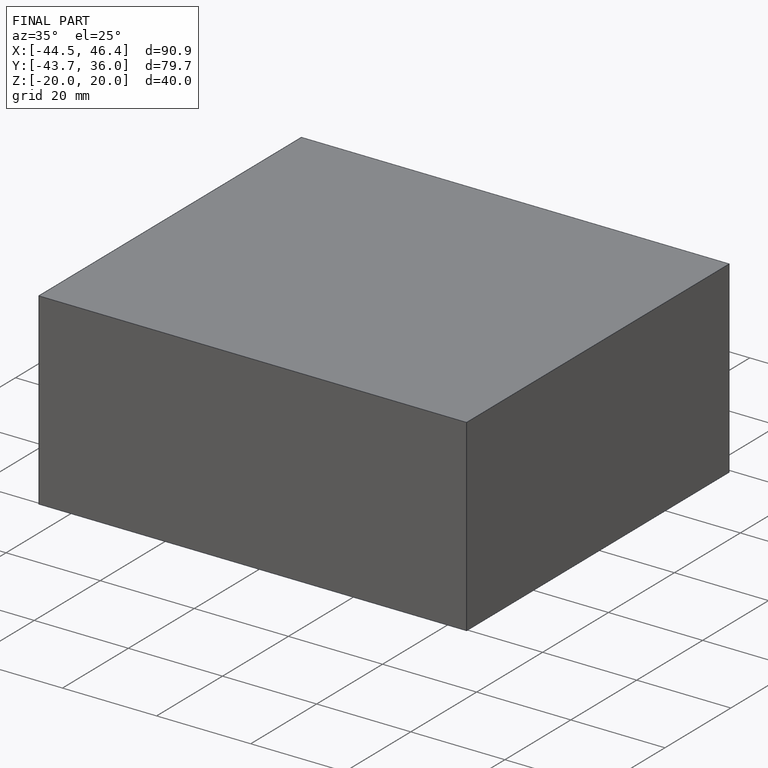
[diagram: finished part — iso view with bounding-box wireframe]
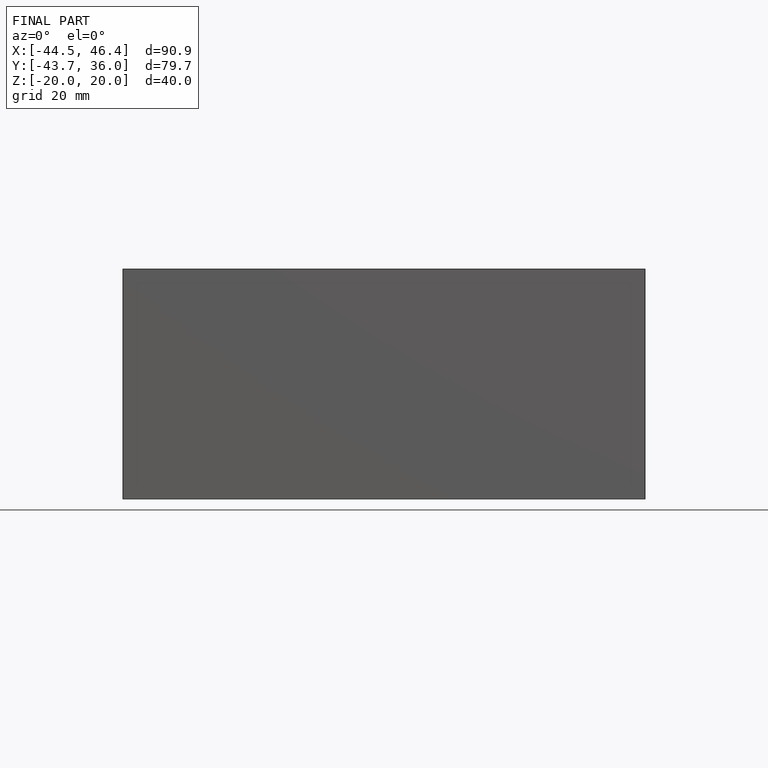
[diagram: finished part — front view with bounding-box wireframe]
